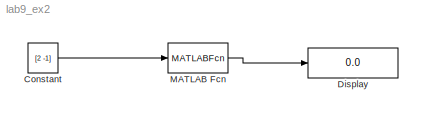
MODEL lab9_ex2
KIND model
BLOCK [Constant] Constant
  Value = [2 -1]
BLOCK [Display] Display
  Decimation = 1
  Ports = [1]
BLOCK [MATLABFcn] MATLAB Fcn
  MATLABFcn = functieg(u(1),u(2))
LINE Constant:1 -> MATLAB Fcn:1
LINE MATLAB Fcn:1 -> Display:1
